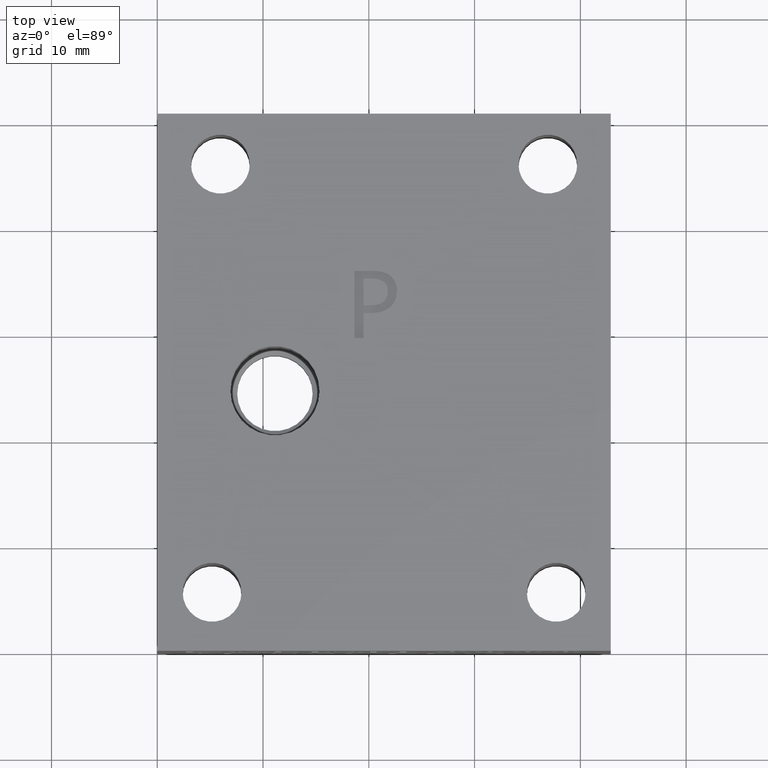
[diagram: clean part render]
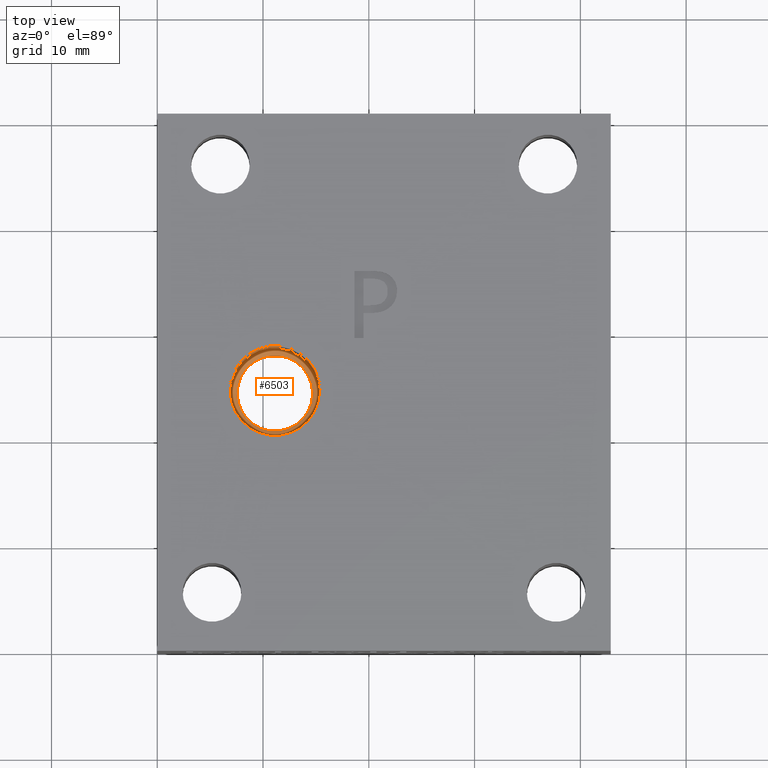
[diagram: same view with one face highlighted and labeled with its STEP entity id]
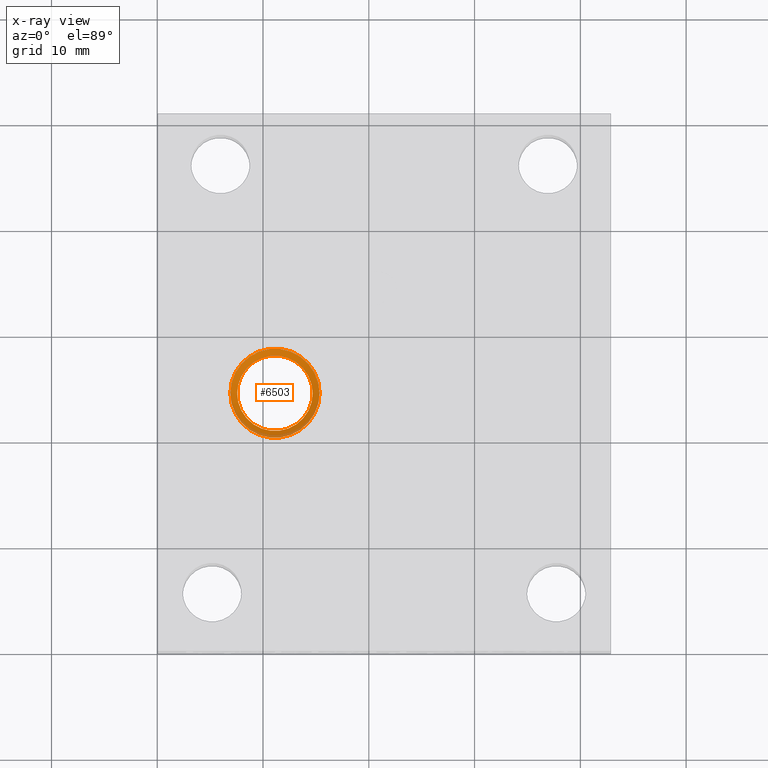
[diagram: x-ray of the same camera — body ghosted, the highlighted face saturated]
A machine part, top view. The second image highlights one B-rep face of the part: STEP entity #6503.
The next image is the same camera in x-ray: the body ghosted, the highlighted face saturated — about 12% of this face is hidden behind the body in this view.
In plain terms, the highlighted conical surface has half-angle 60 deg.
Its self-contained STEP definition (entity closure, byte-faithful):
#26=CONICAL_SURFACE('',#6768,0.083,1.04719754675166);
#34=CIRCLE('',#6769,0.1405);
#35=CIRCLE('',#6770,0.166);
#36=CIRCLE('',#6771,0.166);
#525=FACE_OUTER_BOUND('',#896,.T.);
#896=EDGE_LOOP('',(#5834,#5835,#5836,#5837,#5838));
#1607=LINE('',#11496,#2303);
#2303=VECTOR('',#7951,0.083);
#3117=VERTEX_POINT('',#11493);
#3118=VERTEX_POINT('',#11495);
#3119=VERTEX_POINT('',#11497);
#4038=EDGE_CURVE('',#3117,#3117,#34,.T.);
#4039=EDGE_CURVE('',#3117,#3118,#1607,.T.);
#4040=EDGE_CURVE('',#3118,#3119,#35,.T.);
#4041=EDGE_CURVE('',#3119,#3118,#36,.T.);
#5834=ORIENTED_EDGE('',*,*,#4038,.F.);
#5835=ORIENTED_EDGE('',*,*,#4039,.T.);
#5836=ORIENTED_EDGE('',*,*,#4040,.T.);
#5837=ORIENTED_EDGE('',*,*,#4041,.T.);
#5838=ORIENTED_EDGE('',*,*,#4039,.F.);
#6503=ADVANCED_FACE('',(#525),#26,.F.);
#6768=AXIS2_PLACEMENT_3D('',#11492,#7947,#7948);
#6769=AXIS2_PLACEMENT_3D('',#11494,#7949,#7950);
#6770=AXIS2_PLACEMENT_3D('',#11498,#7952,#7953);
#6771=AXIS2_PLACEMENT_3D('',#11499,#7954,#7955);
#7947=DIRECTION('center_axis',(0.,0.,1.));
#7948=DIRECTION('ref_axis',(1.,0.,0.));
#7949=DIRECTION('center_axis',(0.,0.,1.));
#7950=DIRECTION('ref_axis',(1.,0.,0.));
#7951=DIRECTION('',(-0.866025401561969,-1.06057523600317E-16,0.500000003849431));
#7952=DIRECTION('center_axis',(0.,0.,1.));
#7953=DIRECTION('ref_axis',(1.,0.,0.));
#7954=DIRECTION('center_axis',(0.,0.,1.));
#7955=DIRECTION('ref_axis',(1.,0.,0.));
#11492=CARTESIAN_POINT('Origin',(0.438,0.968,0.182079927165354));
#11493=CARTESIAN_POINT('',(0.2975,0.968,0.215277567984537));
#11494=CARTESIAN_POINT('Origin',(0.438,0.968,0.215277567984537));
#11495=CARTESIAN_POINT('',(0.272,0.968,0.23));
#11496=CARTESIAN_POINT('',(0.355,0.968,0.182079927165354));
#11497=CARTESIAN_POINT('',(0.604,0.968,0.23));
#11498=CARTESIAN_POINT('Origin',(0.438,0.968,0.23));
#11499=CARTESIAN_POINT('Origin',(0.438,0.968,0.23));